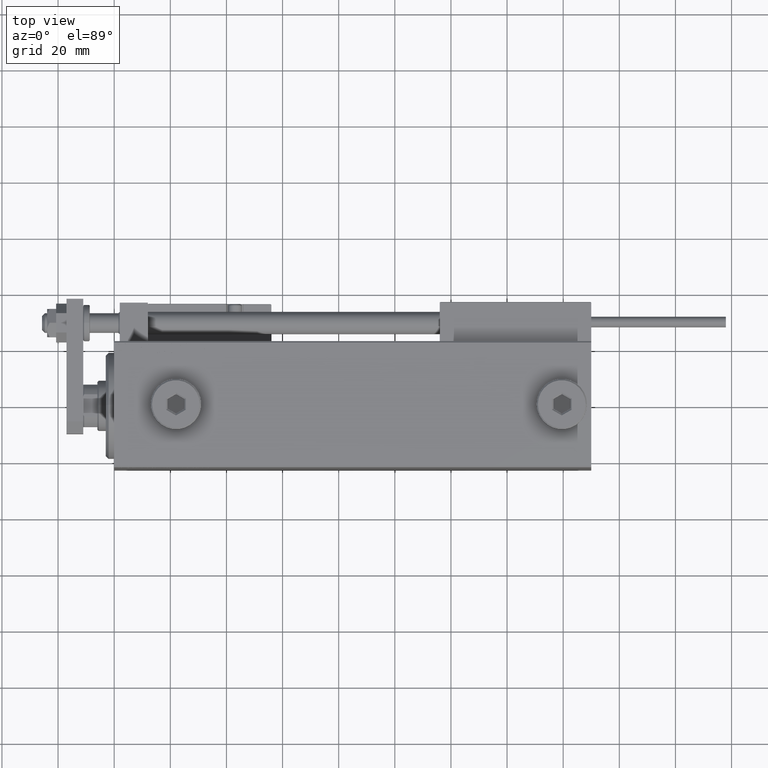
[diagram: clean part render]
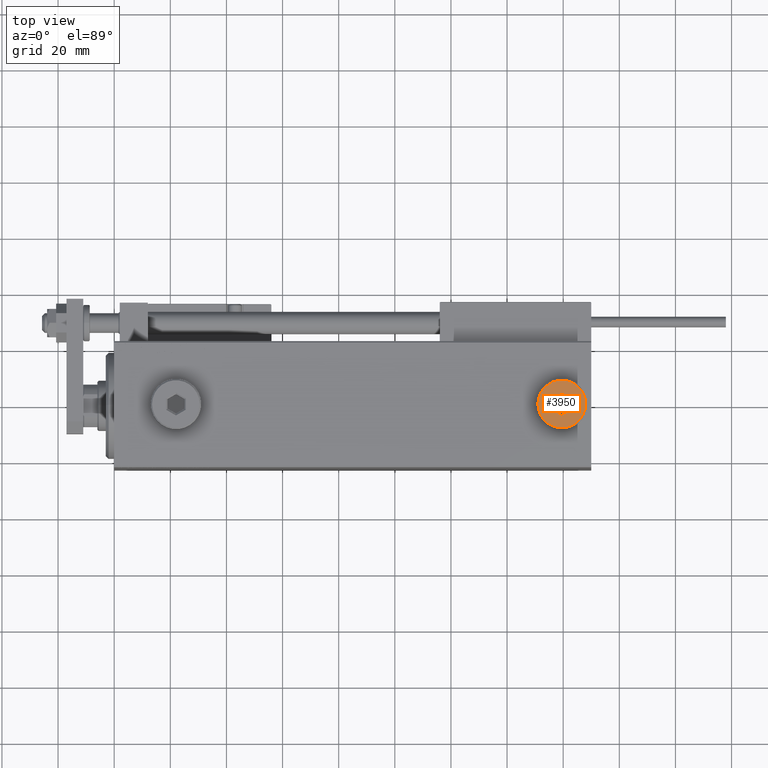
[diagram: same view with one face highlighted and labeled with its STEP entity id]
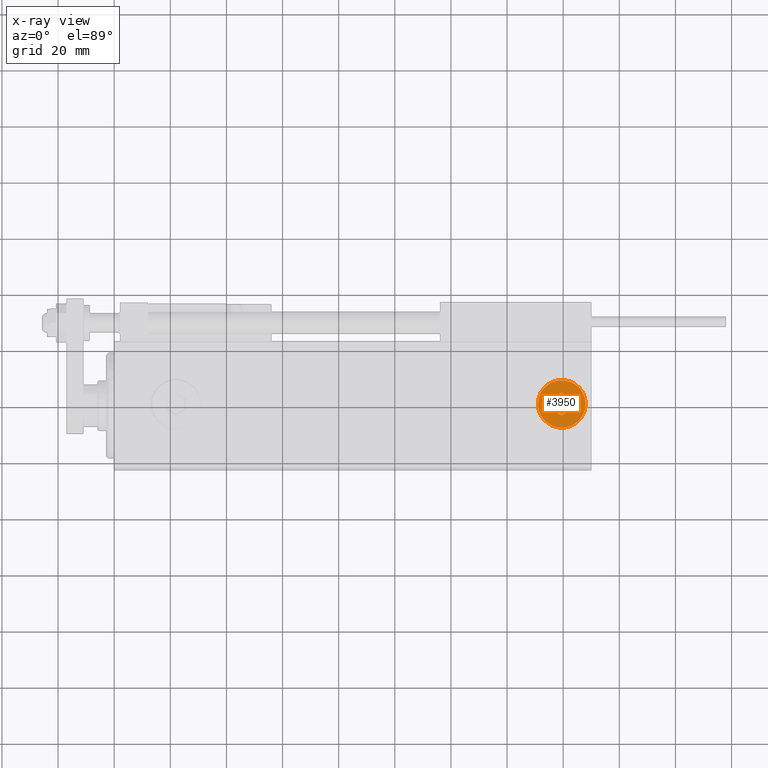
[diagram: x-ray of the same camera — body ghosted, the highlighted face saturated]
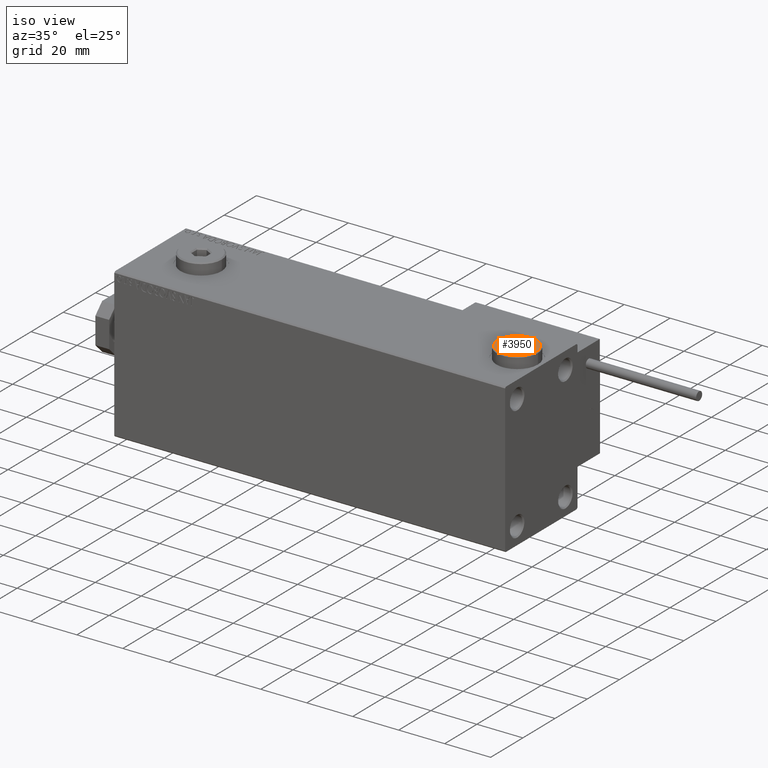
[diagram: same view with one face highlighted and labeled with its STEP entity id]
A machine part, top view. The second image highlights one B-rep face of the part: STEP entity #3950.
The next image is the same camera in x-ray: the body ghosted, the highlighted face saturated — about 0% of this face is hidden behind the body in this view.
A second angle (iso view) of the same face is appended — the face is thin or edge-on in the first view.
In plain terms, the highlighted planar face has unit normal (0, 0, 1).
Its self-contained STEP definition (entity closure, byte-faithful):
#151 = PLANE ( 'NONE',  #33360 ) ;
#750 = CARTESIAN_POINT ( 'NONE',  ( 1.590596867181068292E-15, 4.041451884327386779, 5.000000000000000000 ) ) ;
#784 = CARTESIAN_POINT ( 'NONE',  ( -3.500000000000006661, 1.732050807568878081, 5.000000000000000000 ) ) ;
#1016 = CARTESIAN_POINT ( 'NONE',  ( 0.2500000000000027756, -3.897114317029979347, 5.000000000000000000 ) ) ;
#1207 = CARTESIAN_POINT ( 'NONE',  ( 0.000000000000000000, 0.000000000000000000, 5.000000000000000000 ) ) ;
#1518 = EDGE_CURVE ( 'NONE', #44160, #16807, #8990, .T. ) ;
#1896 = EDGE_CURVE ( 'NONE', #4497, #44160, #30208, .T. ) ;
#1962 = EDGE_CURVE ( 'NONE', #31868, #4497, #17711, .T. ) ;
#2950 = EDGE_CURVE ( 'NONE', #7714, #22560, #29924, .T. ) ;
#3950 = ADVANCED_FACE ( 'NONE', ( #19855, #36565 ), #151, .T. ) ;
#4497 = VERTEX_POINT ( 'NONE', #23210 ) ;
#5207 = CARTESIAN_POINT ( 'NONE',  ( 3.500000000000006661, -1.732050807568878303, 5.000000000000000000 ) ) ;
#5604 = ORIENTED_EDGE ( 'NONE', *, *, #51644, .T. ) ;
#6103 = DIRECTION ( 'NONE',  ( 1.000000000000000000, 0.000000000000000000, 0.000000000000000000 ) ) ;
#6429 = CARTESIAN_POINT ( 'NONE',  ( 8.500000000000010658, 1.071565949253934716E-15, 5.000000000000000000 ) ) ;
#7254 = ORIENTED_EDGE ( 'NONE', *, *, #1518, .T. ) ;
#7714 = VERTEX_POINT ( 'NONE', #6429 ) ;
#8297 = ORIENTED_EDGE ( 'NONE', *, *, #37818, .T. ) ;
#8389 = ORIENTED_EDGE ( 'NONE', *, *, #2950, .T. ) ;
#8469 = DIRECTION ( 'NONE',  ( -0.8660254037844387076, -0.4999999999999998890, 0.000000000000000000 ) ) ;
#8500 = VECTOR ( 'NONE', #27772, 1000.000000000000000 ) ;
#8990 = LINE ( 'NONE', #1016, #34968 ) ;
#9018 = LINE ( 'NONE', #784, #31171 ) ;
#9133 = VECTOR ( 'NONE', #24722, 1000.000000000000114 ) ;
#9993 = DIRECTION ( 'NONE',  ( 0.000000000000000000, -1.000000000000000000, 0.000000000000000000 ) ) ;
#10213 = VERTEX_POINT ( 'NONE', #49723 ) ;
#11791 = VERTEX_POINT ( 'NONE', #40926 ) ;
#12919 = VECTOR ( 'NONE', #13192, 1000.000000000000000 ) ;
#13192 = DIRECTION ( 'NONE',  ( 0.8660254037844387076, -0.4999999999999998890, 0.000000000000000000 ) ) ;
#14590 = ORIENTED_EDGE ( 'NONE', *, *, #21475, .T. ) ;
#16046 = CARTESIAN_POINT ( 'NONE',  ( -0.2500000000000027756, 3.897114317029978459, 5.000000000000000000 ) ) ;
#16807 = VERTEX_POINT ( 'NONE', #35576 ) ;
#17711 = LINE ( 'NONE', #38433, #12919 ) ;
#19056 = CARTESIAN_POINT ( 'NONE',  ( 3.500000000000006661, -2.020725942163693833, 5.000000000000000000 ) ) ;
#19125 = CARTESIAN_POINT ( 'NONE',  ( 0.000000000000000000, 0.000000000000000000, 5.000000000000000000 ) ) ;
#19441 = EDGE_LOOP ( 'NONE', ( #38251, #5604, #45889, #36672, #7254, #14590 ) ) ;
#19855 = FACE_BOUND ( 'NONE', #19441, .T. ) ;
#20196 = LINE ( 'NONE', #32416, #9133 ) ;
#21475 = EDGE_CURVE ( 'NONE', #16807, #11791, #20196, .T. ) ;
#22207 = EDGE_LOOP ( 'NONE', ( #8297, #8389 ) ) ;
#22560 = VERTEX_POINT ( 'NONE', #28780 ) ;
#23210 = CARTESIAN_POINT ( 'NONE',  ( 3.500000000000006661, 2.020725942163694722, 5.000000000000000000 ) ) ;
#23565 = AXIS2_PLACEMENT_3D ( 'NONE', #1207, #49592, #45616 ) ;
#24107 = DIRECTION ( 'NONE',  ( 1.000000000000000000, 0.000000000000000000, -0.000000000000000000 ) ) ;
#24722 = DIRECTION ( 'NONE',  ( -0.8660254037844385966, 0.4999999999999999445, 0.000000000000000000 ) ) ;
#27772 = DIRECTION ( 'NONE',  ( 0.8660254037844387076, 0.4999999999999998335, 0.000000000000000000 ) ) ;
#28780 = CARTESIAN_POINT ( 'NONE',  ( -8.500000000000010658, 0.000000000000000000, 5.000000000000000000 ) ) ;
#29924 = CIRCLE ( 'NONE', #35004, 8.500000000000010658 ) ;
#30208 = LINE ( 'NONE', #5207, #44298 ) ;
#30308 = DIRECTION ( 'NONE',  ( 0.000000000000000000, 0.000000000000000000, 1.000000000000000000 ) ) ;
#31171 = VECTOR ( 'NONE', #37462, 1000.000000000000000 ) ;
#31868 = VERTEX_POINT ( 'NONE', #750 ) ;
#32416 = CARTESIAN_POINT ( 'NONE',  ( -3.250000000000003109, -2.165063509461102598, 5.000000000000000000 ) ) ;
#33360 = AXIS2_PLACEMENT_3D ( 'NONE', #36051, #52260, #24107 ) ;
#34968 = VECTOR ( 'NONE', #8469, 1000.000000000000000 ) ;
#35004 = AXIS2_PLACEMENT_3D ( 'NONE', #19125, #30308, #6103 ) ;
#35576 = CARTESIAN_POINT ( 'NONE',  ( -1.006139216460143630E-15, -4.041451884327387667, 5.000000000000000000 ) ) ;
#36051 = CARTESIAN_POINT ( 'NONE',  ( 0.000000000000000000, 0.000000000000000000, 5.000000000000000000 ) ) ;
#36565 = FACE_OUTER_BOUND ( 'NONE', #22207, .T. ) ;
#36672 = ORIENTED_EDGE ( 'NONE', *, *, #1896, .T. ) ;
#36990 = EDGE_CURVE ( 'NONE', #11791, #10213, #9018, .T. ) ;
#37462 = DIRECTION ( 'NONE',  ( 0.000000000000000000, 1.000000000000000000, 0.000000000000000000 ) ) ;
#37818 = EDGE_CURVE ( 'NONE', #22560, #7714, #46467, .T. ) ;
#38251 = ORIENTED_EDGE ( 'NONE', *, *, #36990, .T. ) ;
#38433 = CARTESIAN_POINT ( 'NONE',  ( 3.250000000000003109, 2.165063509461103042, 5.000000000000000000 ) ) ;
#40926 = CARTESIAN_POINT ( 'NONE',  ( -3.500000000000006661, -2.020725942163694278, 5.000000000000000000 ) ) ;
#44160 = VERTEX_POINT ( 'NONE', #19056 ) ;
#44298 = VECTOR ( 'NONE', #9993, 1000.000000000000000 ) ;
#45616 = DIRECTION ( 'NONE',  ( 1.000000000000000000, 0.000000000000000000, 0.000000000000000000 ) ) ;
#45889 = ORIENTED_EDGE ( 'NONE', *, *, #1962, .T. ) ;
#46467 = CIRCLE ( 'NONE', #23565, 8.500000000000010658 ) ;
#48746 = LINE ( 'NONE', #16046, #8500 ) ;
#49592 = DIRECTION ( 'NONE',  ( 0.000000000000000000, 0.000000000000000000, 1.000000000000000000 ) ) ;
#49723 = CARTESIAN_POINT ( 'NONE',  ( -3.500000000000006661, 2.020725942163692945, 5.000000000000000000 ) ) ;
#51644 = EDGE_CURVE ( 'NONE', #10213, #31868, #48746, .T. ) ;
#52260 = DIRECTION ( 'NONE',  ( 0.000000000000000000, 0.000000000000000000, 1.000000000000000000 ) ) ;